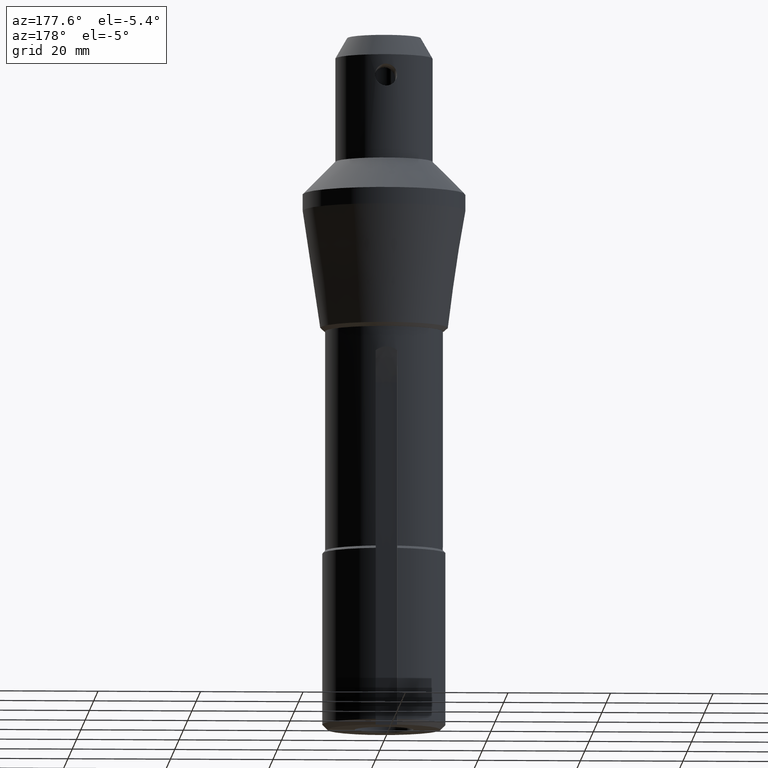
[diagram: clean part render]
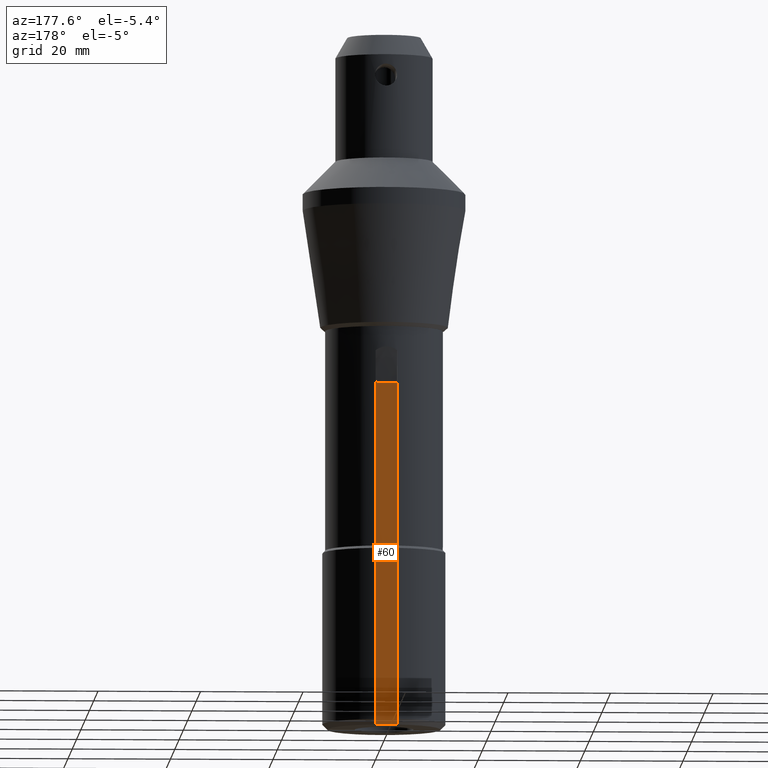
[diagram: same view with one face highlighted and labeled with its STEP entity id]
A machine part, auxiliary view. The second image highlights one B-rep face of the part: STEP entity #60.
In plain terms, the highlighted planar face has unit normal (0, -1, -0).
Its self-contained STEP definition (entity closure, byte-faithful):
#17 = EDGE_CURVE ( 'NONE', #422, #798, #499, .T. ) ;
#51 = ORIENTED_EDGE ( 'NONE', *, *, #17, .T. ) ;
#60 = ADVANCED_FACE ( 'NONE', ( #270 ), #383, .F. ) ;
#79 = CARTESIAN_POINT ( 'NONE',  ( -2.100000000000000089, 10.35000000000002274, -34.51723925166061235 ) ) ;
#80 = CARTESIAN_POINT ( 'NONE',  ( 2.100000000000000089, 10.35000000000002274, -101.5999999999998380 ) ) ;
#97 = AXIS2_PLACEMENT_3D ( 'NONE', #325, #256, #768 ) ;
#98 = VERTEX_POINT ( 'NONE', #145 ) ;
#108 = ORIENTED_EDGE ( 'NONE', *, *, #179, .F. ) ;
#132 = EDGE_CURVE ( 'NONE', #98, #496, #451, .T. ) ;
#133 = CARTESIAN_POINT ( 'NONE',  ( -2.100000000000000089, 10.35000000000002274, -101.5999999999998380 ) ) ;
#145 = CARTESIAN_POINT ( 'NONE',  ( -2.100000000000000089, 10.35000000000002274, -34.51723925166061235 ) ) ;
#171 = CARTESIAN_POINT ( 'NONE',  ( 2.100000000000000089, 10.35000000000002274, -34.51723925166061235 ) ) ;
#176 = DIRECTION ( 'NONE',  ( 0.0000000000000000000, 0.0000000000000000000, -1.000000000000000000 ) ) ;
#179 = EDGE_CURVE ( 'NONE', #496, #798, #411, .T. ) ;
#185 = VECTOR ( 'NONE', #463, 1000.000000000000000 ) ;
#227 = VECTOR ( 'NONE', #176, 1000.000000000000000 ) ;
#256 = DIRECTION ( 'NONE',  ( 0.0000000000000000000, -1.000000000000000000, -0.0000000000000000000 ) ) ;
#270 = FACE_OUTER_BOUND ( 'NONE', #367, .T. ) ;
#274 = EDGE_CURVE ( 'NONE', #98, #422, #672, .T. ) ;
#325 = CARTESIAN_POINT ( 'NONE',  ( -2.100000000000000089, 10.35000000000002274, -34.51723925166061235 ) ) ;
#339 = CARTESIAN_POINT ( 'NONE',  ( 0.0000000000000000000, 10.35000000000002274, -101.5999999999998664 ) ) ;
#367 = EDGE_LOOP ( 'NONE', ( #565, #617, #51, #108 ) ) ;
#383 = PLANE ( 'NONE',  #97 ) ;
#390 = VECTOR ( 'NONE', #604, 1000.000000000000000 ) ;
#411 = LINE ( 'NONE', #339, #390 ) ;
#422 = VERTEX_POINT ( 'NONE', #692 ) ;
#451 = LINE ( 'NONE', #79, #185 ) ;
#463 = DIRECTION ( 'NONE',  ( 0.0000000000000000000, 0.0000000000000000000, -1.000000000000000000 ) ) ;
#496 = VERTEX_POINT ( 'NONE', #133 ) ;
#498 = CARTESIAN_POINT ( 'NONE',  ( -2.100000000000000089, 10.35000000000002274, -34.51723925166061235 ) ) ;
#499 = LINE ( 'NONE', #171, #227 ) ;
#522 = VECTOR ( 'NONE', #675, 1000.000000000000000 ) ;
#565 = ORIENTED_EDGE ( 'NONE', *, *, #132, .F. ) ;
#604 = DIRECTION ( 'NONE',  ( 1.000000000000000000, 0.0000000000000000000, 0.0000000000000000000 ) ) ;
#617 = ORIENTED_EDGE ( 'NONE', *, *, #274, .T. ) ;
#672 = LINE ( 'NONE', #498, #522 ) ;
#675 = DIRECTION ( 'NONE',  ( 1.000000000000000000, -0.0000000000000000000, -0.0000000000000000000 ) ) ;
#692 = CARTESIAN_POINT ( 'NONE',  ( 2.100000000000000089, 10.35000000000002274, -34.51723925166061235 ) ) ;
#768 = DIRECTION ( 'NONE',  ( 0.0000000000000000000, 0.0000000000000000000, -1.000000000000000000 ) ) ;
#798 = VERTEX_POINT ( 'NONE', #80 ) ;